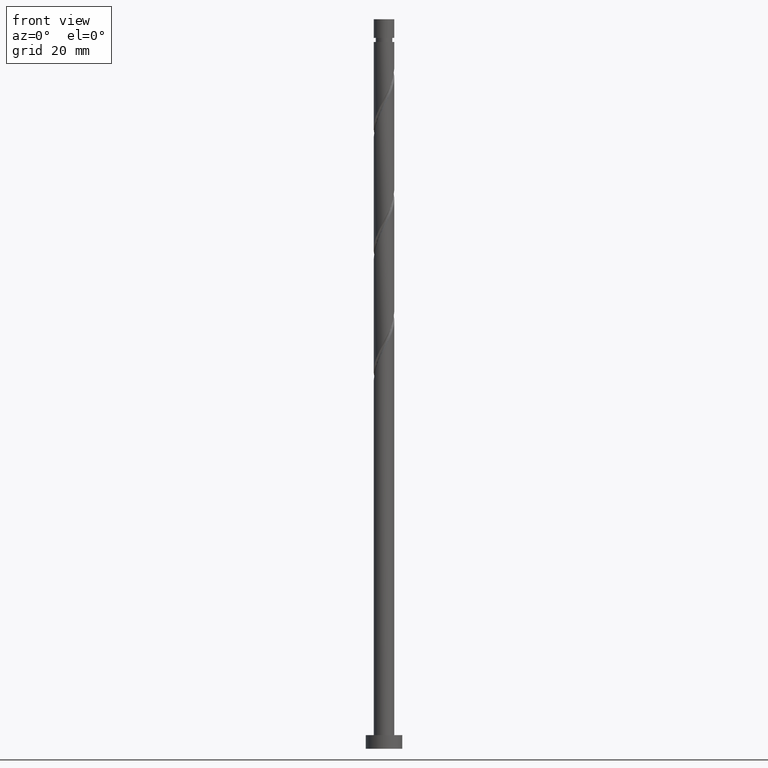
[diagram: clean part render]
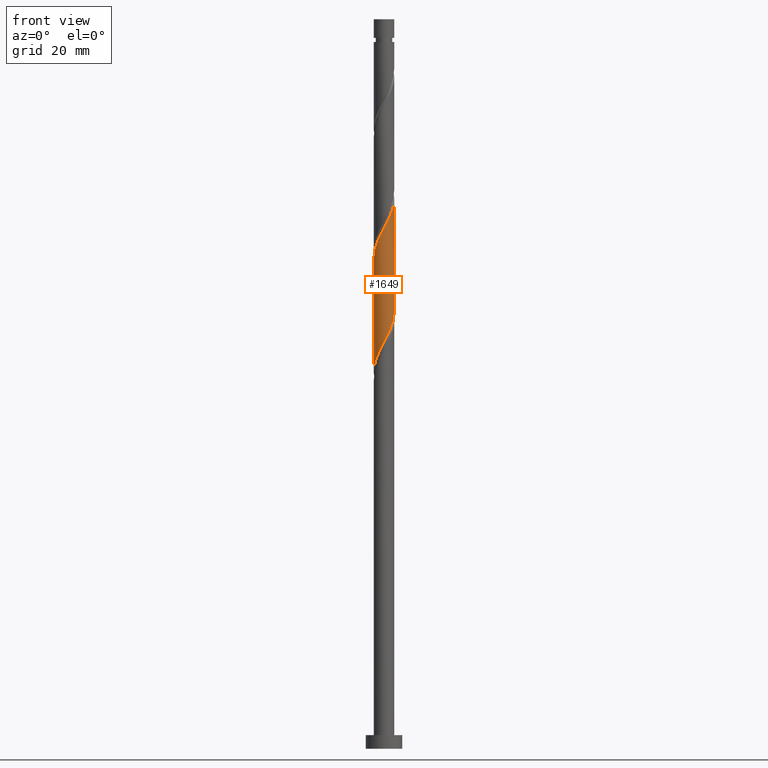
[diagram: same view with one face highlighted and labeled with its STEP entity id]
A machine part, front view. The second image highlights one B-rep face of the part: STEP entity #1649.
In plain terms, the highlighted cylindrical surface (edge-blend (fillet) strip) has radius 2.25 mm, axis along (-0, -0, -1).
Its self-contained STEP definition (entity closure, byte-faithful):
#2 = CARTESIAN_POINT ( 'NONE',  ( -1.800678831930455415, -1.387338727824644069, 85.31260766429622322 ) ) ;
#18 = CARTESIAN_POINT ( 'NONE',  ( -0.5139386748451193476, -2.214276414538841831, 113.1913955430841270 ) ) ;
#26 = CARTESIAN_POINT ( 'NONE',  ( -1.116954303204340082, -1.979789404466508973, 111.9792743309628946 ) ) ;
#135 = CARTESIAN_POINT ( 'NONE',  ( -2.227674514516372550, -0.4523486032462000761, 108.3429106945992544 ) ) ;
#137 = CARTESIAN_POINT ( 'NONE',  ( 0.5139386748451186815, -2.214276414538838278, 90.16109251278106740 ) ) ;
#157 = CARTESIAN_POINT ( 'NONE',  ( -1.959638002949630753, -1.105585318912829518, 84.70654705823561414 ) ) ;
#172 = CARTESIAN_POINT ( 'NONE',  ( 1.959638002949632751, -1.105585318912832182, 118.6459409976295518 ) ) ;
#209 = VERTEX_POINT ( 'NONE', #1207 ) ;
#224 = LINE ( 'NONE', #1630, #296 ) ;
#228 = CARTESIAN_POINT ( 'NONE',  ( 2.246276943635557188, -0.1293827364500373389, 95.61563796732653486 ) ) ;
#232 = ORIENTED_EDGE ( 'NONE', *, *, #1021, .F. ) ;
#258 = CYLINDRICAL_SURFACE ( 'NONE', #1230, 2.250000000000000000 ) ;
#270 = CARTESIAN_POINT ( 'NONE',  ( 1.116954303204337640, -1.979789404466506308, 91.37321372490227134 ) ) ;
#296 = VECTOR ( 'NONE', #1310, 1000.000000000000000 ) ;
#356 = CARTESIAN_POINT ( 'NONE',  ( 1.373217619952648016, -1.782350517785877164, 91.97927433096286620 ) ) ;
#391 = CARTESIAN_POINT ( 'NONE',  ( 1.336880199978460970, -1.838451612741030861, 116.8277591794477530 ) ) ;
#412 = CARTESIAN_POINT ( 'NONE',  ( -1.050827842467677353, -1.989537847213448618, 87.13078948247806466 ) ) ;
#416 = ORIENTED_EDGE ( 'NONE', *, *, #1314, .T. ) ;
#521 = CARTESIAN_POINT ( 'NONE',  ( -2.009996715602345052, -1.061633743224249971, 109.5550319067204867 ) ) ;
#533 = CARTESIAN_POINT ( 'NONE',  ( 1.050827842467678241, -1.989537847213453059, 116.2216985733871013 ) ) ;
#535 = CARTESIAN_POINT ( 'NONE',  ( -1.568779515954457970, -1.612895170282835799, 85.91866827035681808 ) ) ;
#570 = ORIENTED_EDGE ( 'NONE', *, *, #648, .F. ) ;
#648 = EDGE_CURVE ( 'NONE', #973, #209, #986, .T. ) ;
#652 = DIRECTION ( 'NONE',  ( -0.000000000000000000, -0.000000000000000000, -1.000000000000000000 ) ) ;
#654 = CARTESIAN_POINT ( 'NONE',  ( -0.1307132084390640325, -2.269375918314129770, 88.94897130065984925 ) ) ;
#668 = CARTESIAN_POINT ( 'NONE',  ( -0.8154464890247302700, -2.097032909502675402, 112.5853349370235037 ) ) ;
#671 = CARTESIAN_POINT ( 'NONE',  ( -2.191738273361774958, -0.5087075201735706820, 83.49442584611441021 ) ) ;
#692 = CARTESIAN_POINT ( 'NONE',  ( 0.7647754849568961788, -2.140624081685874369, 115.6156379673265064 ) ) ;
#712 =( BOUNDED_CURVE ( )  B_SPLINE_CURVE ( 2, ( #1108, #1621, #228, #748, #1376, #983, #1628, #1499, #356, #270, #1539, #137, #1421, #654, #1443, #1331, #412, #1154, #535, #2, #157, #1023, #671, #903, #1413 ),
 .UNSPECIFIED., .F., .T. ) 
 B_SPLINE_CURVE_WITH_KNOTS ( ( 3, 2, 2, 2, 2, 2, 2, 2, 2, 2, 2, 2, 3 ),
 ( 0.8045252162417513286, 0.8068181818181817677, 0.8181818181818182323, 0.8295454545454545858, 0.8409090909090909394, 0.8522727272727272929, 0.8636363636363636465, 0.8750000000000000000, 0.8863636363636363535, 0.8977272727272727071, 0.9090909090909090606, 0.9204545454545454142, 0.9295252162417516617 ),
 .UNSPECIFIED. ) 
 CURVE ( )  GEOMETRIC_REPRESENTATION_ITEM ( )  RATIONAL_B_SPLINE_CURVE ( ( 0.9061101570135629002, 0.9072237824201450085, 0.9090909090909224943, 0.8998376744372248437, 0.9090909090909224943, 0.8998376744372248437, 0.9090909090909224943, 0.8998376744372248437, 0.9090909090909224943, 0.8998376744372248437, 0.9090909090909224943, 0.8998376744372248437, 0.9090909090909224943, 0.8998376744372248437, 0.9090909090909224943, 0.8998376744372248437, 0.9090909090909224943, 0.8998376744372248437, 0.9090909090909224943, 0.8998376744372248437, 0.9090909090909224943, 0.8998376744372248437, 0.9090909090909224943, 0.9017048011080019965, 0.9061101570135632333 ) ) 
 REPRESENTATION_ITEM ( '' )  );
#748 = CARTESIAN_POINT ( 'NONE',  ( 2.227674514516368554, -0.4523486032462003537, 95.00957736126591158 ) ) ;
#812 = CARTESIAN_POINT ( 'NONE',  ( 2.250000000000003109, 1.720034380902071385E-15, 120.8267895486317087 ) ) ;
#822 = EDGE_CURVE ( 'NONE', #209, #1140, #712, .T. ) ;
#855 = CARTESIAN_POINT ( 'NONE',  ( 2.250000000000000000, 2.755455298081544285E-16, 160.0000000000000000 ) ) ;
#900 = CARTESIAN_POINT ( 'NONE',  ( 2.250000000000005329, -0.2576900866165210968, 120.3408295956604093 ) ) ;
#903 = CARTESIAN_POINT ( 'NONE',  ( -2.250000000000002220, -0.2576900866165156012, 83.01165846020475669 ) ) ;
#911 = CARTESIAN_POINT ( 'NONE',  ( -2.250000000000003109, -0.06474493467859998574, 107.6155542200166195 ) ) ;
#920 = CARTESIAN_POINT ( 'NONE',  ( -1.373217619952650459, -1.782350517785879607, 111.3732137249022855 ) ) ;
#928 = CARTESIAN_POINT ( 'NONE',  ( 1.800678831930457635, -1.387338727824646956, 118.0398803915689854 ) ) ;
#935 = CARTESIAN_POINT ( 'NONE',  ( -2.250000000000003109, -1.809775305123048942E-15, 107.4934562152983801 ) ) ;
#969 = DIRECTION ( 'NONE',  ( -0.000000000000000000, -0.000000000000000000, -1.000000000000000000 ) ) ;
#973 = VERTEX_POINT ( 'NONE', #812 ) ;
#983 = CARTESIAN_POINT ( 'NONE',  ( 2.009996715602341943, -1.061633743224248194, 93.79745614914470764 ) ) ;
#986 = LINE ( 'NONE', #855, #1470 ) ;
#990 = EDGE_LOOP ( 'NONE', ( #570, #232, #416, #1171 ) ) ;
#1020 = CARTESIAN_POINT ( 'NONE',  ( -2.250000000000003109, -1.809775305123048942E-15, 107.4934562152983801 ) ) ;
#1021 = EDGE_CURVE ( 'NONE', #1311, #973, #1151, .T. ) ;
#1023 = CARTESIAN_POINT ( 'NONE',  ( -2.118597173968805425, -0.8238319100010154106, 84.10048645217500507 ) ) ;
#1030 = CARTESIAN_POINT ( 'NONE',  ( -2.246276943635560741, -0.1293827364500365895, 107.7368500885386595 ) ) ;
#1041 = CARTESIAN_POINT ( 'NONE',  ( 2.191738273361778067, -0.5087075201735720142, 119.8580622097507700 ) ) ;
#1060 = CARTESIAN_POINT ( 'NONE',  ( -2.249999999999999556, 8.742261701193629257E-15, 82.52569850723344302 ) ) ;
#1108 = CARTESIAN_POINT ( 'NONE',  ( 2.250000000000000000, 3.380241478990181135E-15, 95.85903184056681425 ) ) ;
#1140 = VERTEX_POINT ( 'NONE', #1060 ) ;
#1151 =( BOUNDED_CURVE ( )  B_SPLINE_CURVE ( 2, ( #1020, #911, #1030, #135, #1162, #521, #1180, #1419, #920, #26, #668, #18, #1567, #1152, #1537, #692, #533, #391, #1327, #928, #172, #1191, #1041, #900, #1411 ),
 .UNSPECIFIED., .F., .T. ) 
 B_SPLINE_CURVE_WITH_KNOTS ( ( 3, 2, 2, 2, 2, 2, 2, 2, 2, 2, 2, 2, 3 ),
 ( 0.3045252162417512731, 0.3068181818181817677, 0.3181818181818182323, 0.3295454545454545858, 0.3409090909090909394, 0.3522727272727272929, 0.3636363636363636465, 0.3750000000000000000, 0.3863636363636363535, 0.3977272727272727071, 0.4090909090909090606, 0.4204545454545454142, 0.4295252162417514952 ),
 .UNSPECIFIED. ) 
 CURVE ( )  GEOMETRIC_REPRESENTATION_ITEM ( )  RATIONAL_B_SPLINE_CURVE ( ( 0.9061101570135690064, 0.9072237824201511147, 0.9090909090909286006, 0.8998376744372309499, 0.9090909090909286006, 0.8998376744372309499, 0.9090909090909286006, 0.8998376744372309499, 0.9090909090909286006, 0.8998376744372309499, 0.9090909090909286006, 0.8998376744372309499, 0.9090909090909286006, 0.8998376744372309499, 0.9090909090909286006, 0.8998376744372309499, 0.9090909090909286006, 0.8998376744372309499, 0.9090909090909286006, 0.8998376744372309499, 0.9090909090909286006, 0.8998376744372309499, 0.9090909090909286006, 0.9017048011080082137, 0.9061101570135692285 ) ) 
 REPRESENTATION_ITEM ( '' )  );
#1152 = CARTESIAN_POINT ( 'NONE',  ( 0.1307132084390632276, -2.269375918314132434, 114.4035167552053167 ) ) ;
#1154 = CARTESIAN_POINT ( 'NONE',  ( -1.336880199978459194, -1.838451612741027974, 86.52472887641744137 ) ) ;
#1162 = CARTESIAN_POINT ( 'NONE',  ( -2.118835615059359689, -0.7569911732352245792, 108.9489713006598635 ) ) ;
#1171 = ORIENTED_EDGE ( 'NONE', *, *, #822, .F. ) ;
#1180 = CARTESIAN_POINT ( 'NONE',  ( -1.819738826151653388, -1.323272687164749772, 110.1610925127810674 ) ) ;
#1191 = CARTESIAN_POINT ( 'NONE',  ( 2.118597173968809422, -0.8238319100010167428, 119.2520016036901609 ) ) ;
#1207 = CARTESIAN_POINT ( 'NONE',  ( 2.250000000000000000, 3.380241478990181135E-15, 95.85903184056681425 ) ) ;
#1230 = AXIS2_PLACEMENT_3D ( 'NONE', #1278, #652, #1501 ) ;
#1278 = CARTESIAN_POINT ( 'NONE',  ( 0.000000000000000000, 0.000000000000000000, 160.0000000000000000 ) ) ;
#1310 = DIRECTION ( 'NONE',  ( -0.000000000000000000, -0.000000000000000000, -1.000000000000000000 ) ) ;
#1311 = VERTEX_POINT ( 'NONE', #935 ) ;
#1314 = EDGE_CURVE ( 'NONE', #1311, #1140, #224, .T. ) ;
#1327 = CARTESIAN_POINT ( 'NONE',  ( 1.568779515954459081, -1.612895170282839130, 117.4338197855083763 ) ) ;
#1331 = CARTESIAN_POINT ( 'NONE',  ( -0.7647754849568959568, -2.140624081685869928, 87.73685008853865952 ) ) ;
#1376 = CARTESIAN_POINT ( 'NONE',  ( 2.118835615059355693, -0.7569911732352242462, 94.40351675520533092 ) ) ;
#1411 = CARTESIAN_POINT ( 'NONE',  ( 2.250000000000003109, 1.720034380902071385E-15, 120.8267895486317087 ) ) ;
#1413 = CARTESIAN_POINT ( 'NONE',  ( -2.249999999999999556, 8.742261701193629257E-15, 82.52569850723344302 ) ) ;
#1419 = CARTESIAN_POINT ( 'NONE',  ( -1.629480936700961724, -1.584911631105249796, 110.7671531188416907 ) ) ;
#1421 = CARTESIAN_POINT ( 'NONE',  ( 0.1916127332030267694, -2.241826166426483358, 89.55503190672044411 ) ) ;
#1443 = CARTESIAN_POINT ( 'NONE',  ( -0.4477443466979799114, -2.204999999999999183, 88.34291069459926860 ) ) ;
#1470 = VECTOR ( 'NONE', #969, 1000.000000000000000 ) ;
#1499 = CARTESIAN_POINT ( 'NONE',  ( 1.629480936700959948, -1.584911631105247576, 92.58533493702348949 ) ) ;
#1501 = DIRECTION ( 'NONE',  ( -1.000000000000000000, 0.000000000000000000, 0.000000000000000000 ) ) ;
#1515 = FACE_OUTER_BOUND ( 'NONE', #990, .T. ) ;
#1537 = CARTESIAN_POINT ( 'NONE',  ( 0.4477443466979796338, -2.205000000000003180, 115.0095773612659400 ) ) ;
#1539 = CARTESIAN_POINT ( 'NONE',  ( 0.8154464890247279385, -2.097032909502672737, 90.76715311884167647 ) ) ;
#1567 = CARTESIAN_POINT ( 'NONE',  ( -0.1916127332030280739, -2.241826166426486910, 113.7974561491446934 ) ) ;
#1621 = CARTESIAN_POINT ( 'NONE',  ( 2.249999999999999556, -0.06474493467860244211, 95.73693383584856065 ) ) ;
#1628 = CARTESIAN_POINT ( 'NONE',  ( 1.819738826151650279, -1.323272687164747996, 93.19139554308409856 ) ) ;
#1630 = CARTESIAN_POINT ( 'NONE',  ( -2.250000000000000000, 0.000000000000000000, 160.0000000000000000 ) ) ;
#1649 = ADVANCED_FACE ( 'NONE', ( #1515 ), #258, .T. ) ;